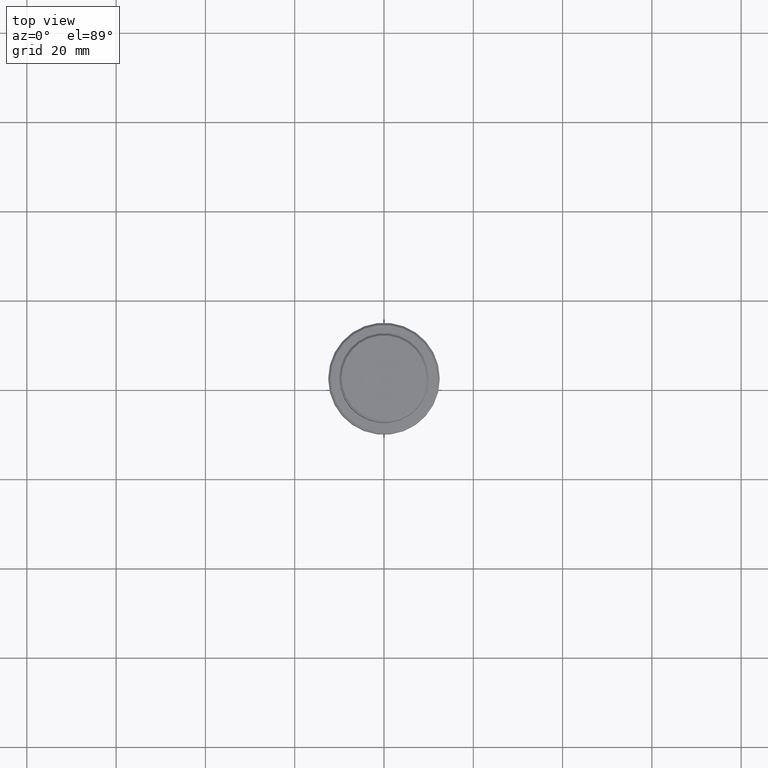
[diagram: clean part render]
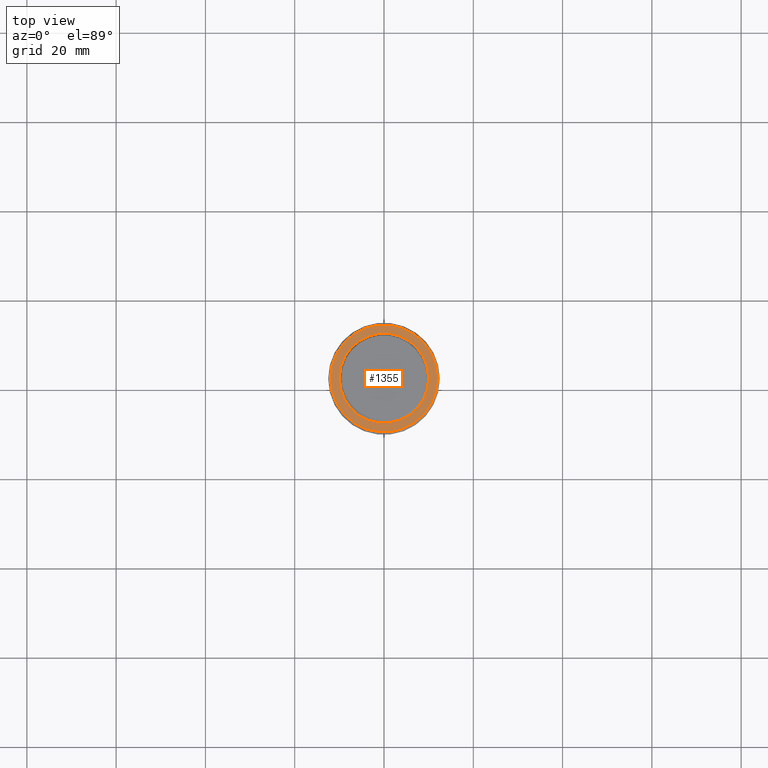
[diagram: same view with one face highlighted and labeled with its STEP entity id]
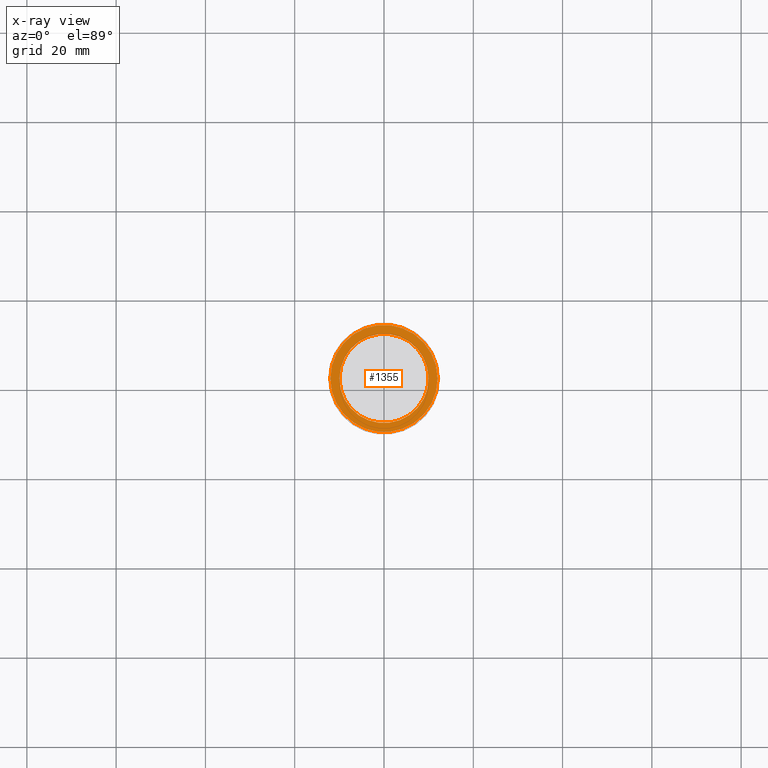
[diagram: x-ray of the same camera — body ghosted, the highlighted face saturated]
A machine part, top view. The second image highlights one B-rep face of the part: STEP entity #1355.
The next image is the same camera in x-ray: the body ghosted, the highlighted face saturated — about 0% of this face is hidden behind the body in this view.
In plain terms, the highlighted planar face has unit normal (0, -0, 1).
Its self-contained STEP definition (entity closure, byte-faithful):
#21 = DIRECTION ( 'NONE',  ( 1.000000000000000000, 0.000000000000000000, 0.000000000000000000 ) ) ;
#29 = EDGE_CURVE ( 'NONE', #509, #135, #697, .T. ) ;
#135 = VERTEX_POINT ( 'NONE', #339 ) ;
#224 = DIRECTION ( 'NONE',  ( 0.000000000000000000, 0.000000000000000000, -1.000000000000000000 ) ) ;
#261 = CARTESIAN_POINT ( 'NONE',  ( 0.000000000000000000, 9.499999999999994671, -9.000000000000001776 ) ) ;
#268 = PLANE ( 'NONE',  #704 ) ;
#302 = CIRCLE ( 'NONE', #891, 12.00000000000002487 ) ;
#339 = CARTESIAN_POINT ( 'NONE',  ( 9.999999999999994671, 0.000000000000000000, -9.000000000000001776 ) ) ;
#357 = DIRECTION ( 'NONE',  ( 0.000000000000000000, -0.000000000000000000, 1.000000000000000000 ) ) ;
#382 = ORIENTED_EDGE ( 'NONE', *, *, #29, .T. ) ;
#471 = DIRECTION ( 'NONE',  ( 1.000000000000000000, 0.000000000000000000, 0.000000000000000000 ) ) ;
#509 = VERTEX_POINT ( 'NONE', #1299 ) ;
#594 = DIRECTION ( 'NONE',  ( -0.000000000000000000, -0.000000000000000000, 1.000000000000000000 ) ) ;
#601 = DIRECTION ( 'NONE',  ( 1.000000000000000000, 0.000000000000000000, 0.000000000000000000 ) ) ;
#622 = ORIENTED_EDGE ( 'NONE', *, *, #1137, .T. ) ;
#631 = DIRECTION ( 'NONE',  ( -0.000000000000000000, -0.000000000000000000, 1.000000000000000000 ) ) ;
#697 = CIRCLE ( 'NONE', #741, 9.999999999999994671 ) ;
#704 = AXIS2_PLACEMENT_3D ( 'NONE', #261, #357, #471 ) ;
#712 = CARTESIAN_POINT ( 'NONE',  ( 12.00000000000002487, 1.500192328955509115E-15, -9.000000000000001776 ) ) ;
#721 = EDGE_LOOP ( 'NONE', ( #1224, #1271 ) ) ;
#741 = AXIS2_PLACEMENT_3D ( 'NONE', #988, #1310, #898 ) ;
#750 = AXIS2_PLACEMENT_3D ( 'NONE', #824, #594, #601 ) ;
#787 = CARTESIAN_POINT ( 'NONE',  ( 0.000000000000000000, 0.000000000000000000, -9.000000000000001776 ) ) ;
#824 = CARTESIAN_POINT ( 'NONE',  ( 0.000000000000000000, 0.000000000000000000, -9.000000000000001776 ) ) ;
#891 = AXIS2_PLACEMENT_3D ( 'NONE', #1191, #631, #1276 ) ;
#898 = DIRECTION ( 'NONE',  ( 1.000000000000000000, 0.000000000000000000, 0.000000000000000000 ) ) ;
#988 = CARTESIAN_POINT ( 'NONE',  ( 0.000000000000000000, 0.000000000000000000, -9.000000000000001776 ) ) ;
#1044 = FACE_BOUND ( 'NONE', #1147, .T. ) ;
#1120 = CARTESIAN_POINT ( 'NONE',  ( -12.00000000000002487, 0.000000000000000000, -9.000000000000001776 ) ) ;
#1124 = VERTEX_POINT ( 'NONE', #1120 ) ;
#1137 = EDGE_CURVE ( 'NONE', #135, #509, #1320, .T. ) ;
#1147 = EDGE_LOOP ( 'NONE', ( #622, #382 ) ) ;
#1191 = CARTESIAN_POINT ( 'NONE',  ( 0.000000000000000000, 0.000000000000000000, -9.000000000000001776 ) ) ;
#1224 = ORIENTED_EDGE ( 'NONE', *, *, #1414, .T. ) ;
#1245 = FACE_OUTER_BOUND ( 'NONE', #721, .T. ) ;
#1251 = AXIS2_PLACEMENT_3D ( 'NONE', #787, #224, #21 ) ;
#1252 = CIRCLE ( 'NONE', #750, 12.00000000000002487 ) ;
#1271 = ORIENTED_EDGE ( 'NONE', *, *, #1340, .T. ) ;
#1276 = DIRECTION ( 'NONE',  ( 1.000000000000000000, 0.000000000000000000, 0.000000000000000000 ) ) ;
#1299 = CARTESIAN_POINT ( 'NONE',  ( -9.999999999999994671, 1.224646799147352665E-15, -9.000000000000001776 ) ) ;
#1310 = DIRECTION ( 'NONE',  ( 0.000000000000000000, 0.000000000000000000, -1.000000000000000000 ) ) ;
#1320 = CIRCLE ( 'NONE', #1251, 9.999999999999994671 ) ;
#1340 = EDGE_CURVE ( 'NONE', #1391, #1124, #1252, .T. ) ;
#1355 = ADVANCED_FACE ( 'NONE', ( #1245, #1044 ), #268, .T. ) ;
#1391 = VERTEX_POINT ( 'NONE', #712 ) ;
#1414 = EDGE_CURVE ( 'NONE', #1124, #1391, #302, .T. ) ;